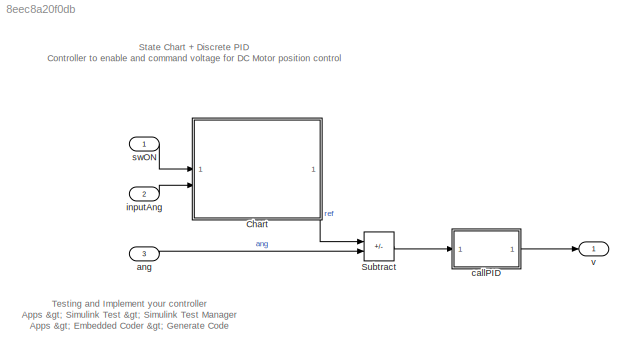
MODEL slx_8eec8a20f0db
KIND model
CONFIG AbsTol = auto
CONFIG EnableMultiTasking = off
CONFIG FixedStep = 0.01
CONFIG MaxStep = auto
CONFIG MinStep = auto
CONFIG RelTol = 1e-3
CONFIG SampleTimeConstraint = Unconstrained
CONFIG SolverName = FixedStepAuto
CONFIG StartTime = 0.0
CONFIG StopTime = inf
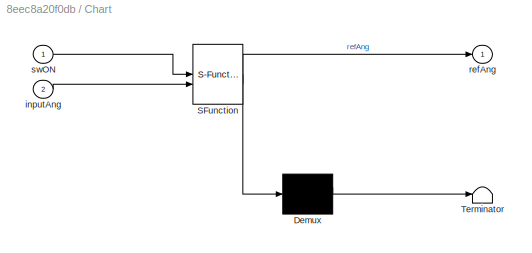
BLOCK [SubSystem] Chart
  ErrorFcn = Stateflow.Translate.translate
  PermitHierarchicalResolution = ExplicitOnly
  PortSchema = {"entries":[{"content":{"sides":[{"content":{"connectorIds":["In1","In2"]},"type":"ConnectorPlacement.EquallySpacedRectSide","uuid":"8e386dd2-2ebc-4763-aebf-f59259bbb5eb"},{"content":{"connectorIds":[],"side":"RIGHT"},"type":"ConnectorPlacement.EquallySpacedRectSide","uuid":"c3caac01-b458-4400-9120-ae3510b62e2d"},{"content":{"connectorIds":[],"side":"TOP"},"type":"ConnectorPlacement.EquallySpacedR...<+390ch>
  SFBlockType = Chart
  TreatAsAtomicUnit = on
BLOCK [Demux] Chart/ Demux 
  Outputs = 1
BLOCK [S-Function] Chart/ SFunction 
  EnableBusSupport = on
  FunctionName = sf_sfun
  PortCounts = [2 2]
  SFcnIsStateOwnerBlock = off
  SFunctionDeploymentMode = off
  Tag = Stateflow S-Function 3
BLOCK [Terminator] Chart/ Terminator 
BLOCK [Inport] Chart/inputAng
  Port = 2
BLOCK [Outport] Chart/refAng
BLOCK [Inport] Chart/swON
BLOCK [Sum] Subtract
  IconShape = rectangular
  Inputs = +-
BLOCK [Inport] ang
  NameLocation = top
  OutDataTypeStr = single
  Port = 3
  PortDimensions = 1
  SampleTime = Ctrl_Ts
  SamplingMode = Sample based
  SignalType = real
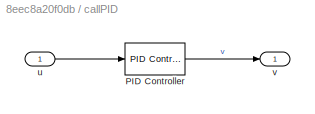
BLOCK [SubSystem] callPID
  FunctionInterfaceSpec = Allow arguments (Optimized)
  RTWSystemCode = Nonreusable function
  TreatAsAtomicUnit = on
BLOCK [Reference] callPID/PID Controller  REF=slpidlib/PID Controller
  SourceBlock = slpidlib/PID Controller
  SourceType = PID 1dof
BLOCK [Inport] callPID/u
BLOCK [Outport] callPID/v
BLOCK [Inport] inputAng
  OutDataTypeStr = single
  Port = 2
  PortDimensions = 1
  SampleTime = Ctrl_Ts
  SamplingMode = Sample based
  SignalType = real
BLOCK [Inport] swON
  OutDataTypeStr = boolean
  PortDimensions = 1
  SampleTime = Ctrl_Ts
  SamplingMode = Sample based
  SignalType = real
BLOCK [Outport] v
  OutDataTypeStr = single
  PortDimensions = 1
  SampleTime = Ctrl_Ts
  SamplingMode = Sample based
  SignalType = real
ANNOTATION (root): State Chart + Discrete PID Controller to enable and command voltage for DC Motor position control
ANNOTATION (root): Testing and Implement your controller Apps > Simulink Test > Simulink Test Manager Apps > Embedded Coder > Generate Code
LINE Chart:1 -> Subtract:1
LINE Subtract:1 -> callPID:1
LINE ang:1 -> Subtract:2
LINE callPID/PID Controller:1 -> callPID/v:1
LINE callPID/u:1 -> callPID/PID Controller:1
LINE callPID:1 -> v:1
LINE inputAng:1 -> Chart:2
LINE swON:1 -> Chart:1
CHART Chart states=5 transitions=9
  STATE_LABEL 'mtrCONTROLLED'
  STATE_LABEL 'mtrPAUSE\nrefAng = 0;'
  STATE_LABEL 'mtrMANUAL\nrefAng = inputAng;'
  STATE_LABEL 'mtrMAX\nrefAng = single(pi);'
  STATE_LABEL 'after(3,sec)'
  STATE_LABEL '[inputAng >= single(pi)]'
  STATE_LABEL '[inputAng < pi]'
  STATE_LABEL '[inputAng >=pi]'
  STATE_LABEL 'mtrPAUSE\nrefAng = 0;'
  STATE_LABEL 'mtrMANUAL\nrefAng = inputAng;'
  STATE_LABEL 'mtrMAX\nrefAng = single(pi);'
  STATE_LABEL 'mtrZERO\nrefAng = 0;'
CHART  states=0 transitions=0
